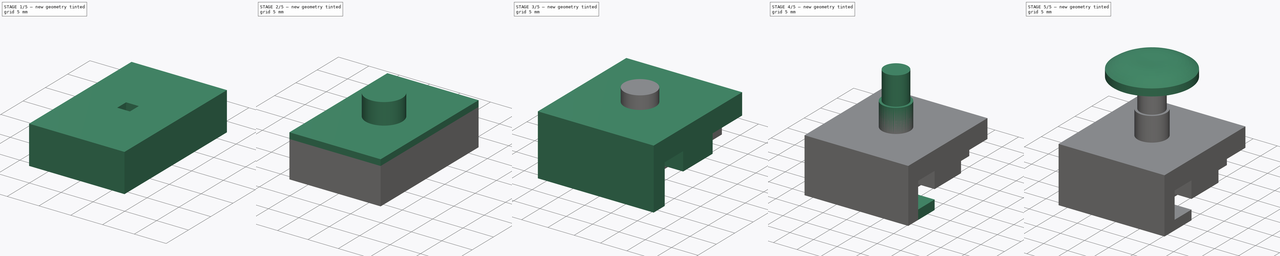
[diagram: build sequence overview — one tinted view per stage of 5, left to right]
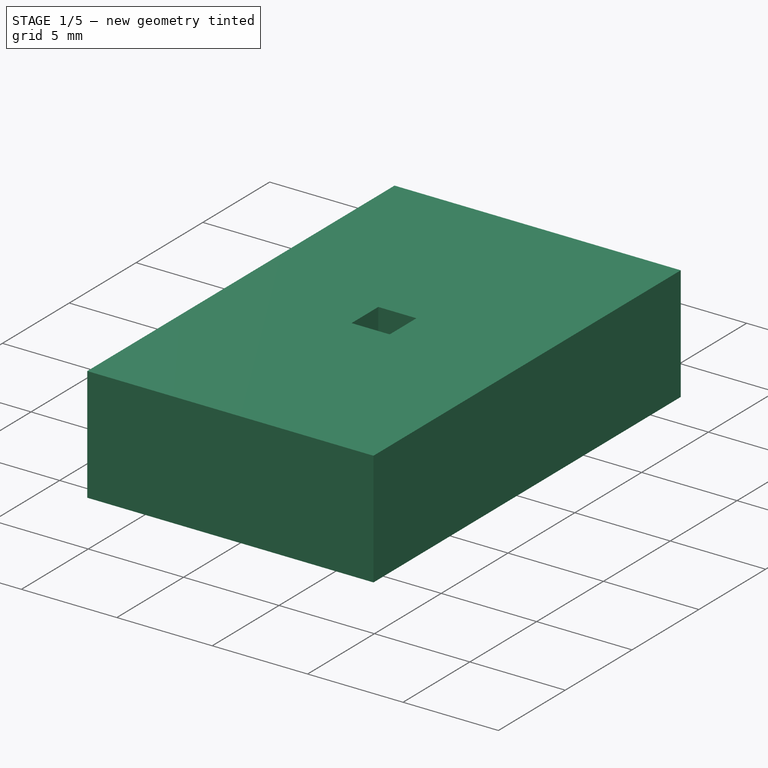
[diagram: stage 1 of 5 — iso view after this stage's code; geometry added in this stage tinted green]
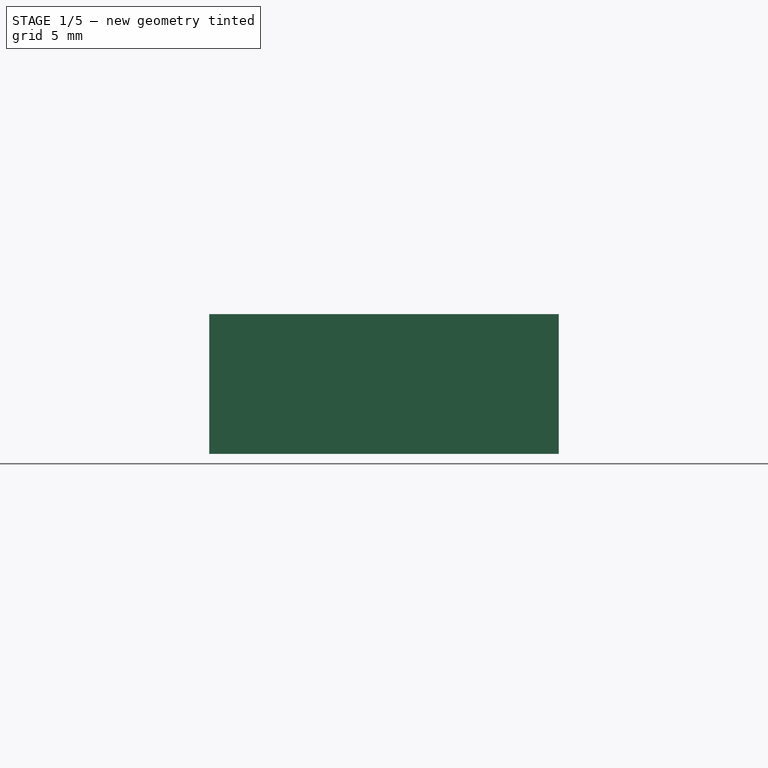
[diagram: stage 1 of 5 — front view after this stage's code; geometry added in this stage tinted green]
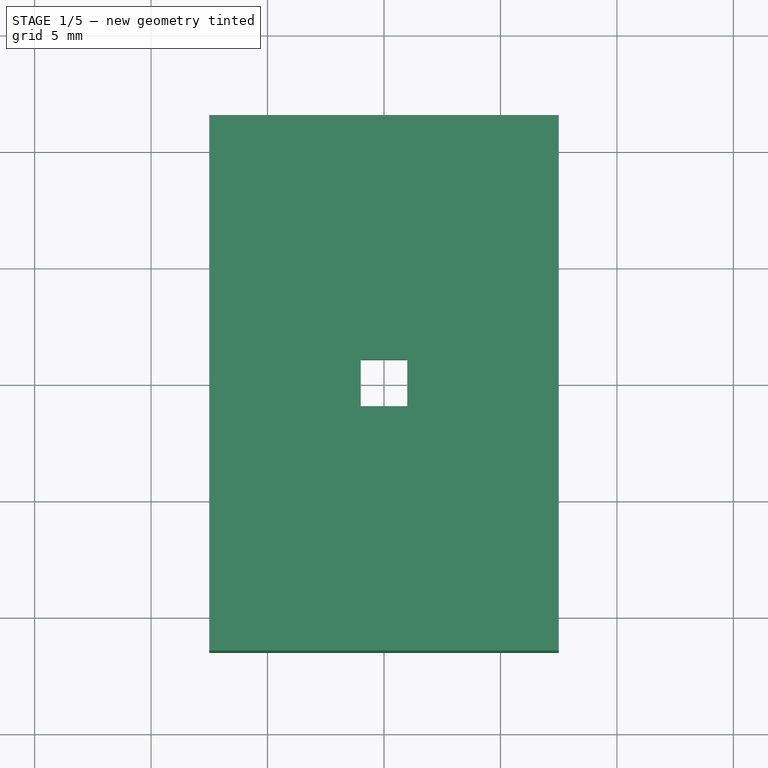
[diagram: stage 1 of 5 — top view after this stage's code; geometry added in this stage tinted green]
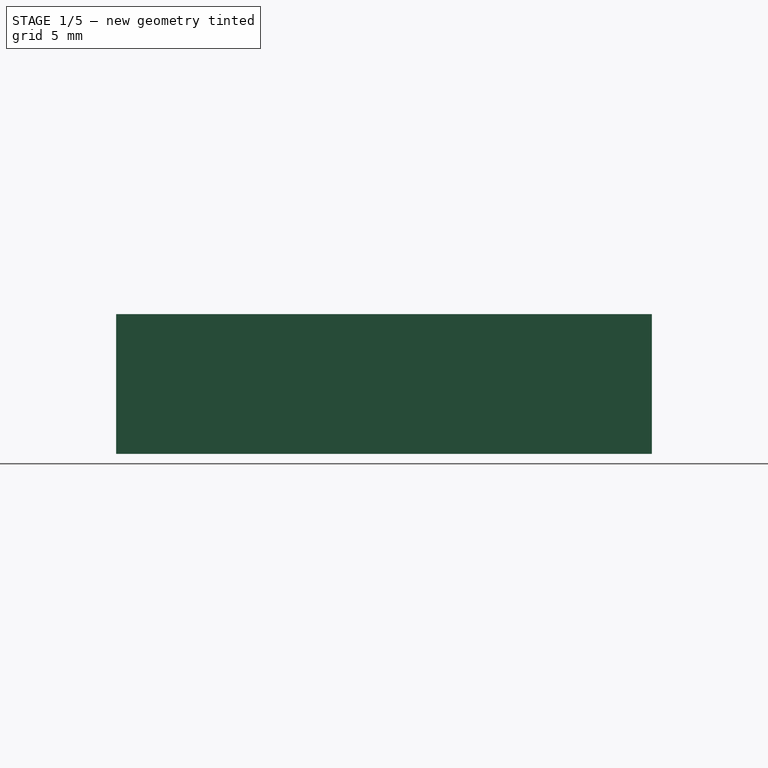
[diagram: stage 1 of 5 — right view after this stage's code; geometry added in this stage tinted green]
FCSTD DOCUMENT  (FreeCAD 0.18R4 (GitTag))
Label: Joystick
License: All rights reserved
LicenseURL: http://en.wikipedia.org/wiki/All_rights_reserved
objects: Sketcher::SketchObject×16, PartDesign::Pad×11, PartDesign::Pocket×4, PartDesign::Body×3, PartDesign::Revolution×1
note: 51 computed .brp shape members not serialized (recipe doc carries the construction recipe); baked Part::Feature solids carry a one-line shape summary decoded from their .brp

FEATURE [PartDesign::Body] Body001  label="BaseTest"
  Group = -> [Sketch004,Pad002,Sketch005,Pocket001,Sketch007,Pad004,Sketch008,Pad005,Sketch009,Pad006,Sketch010,Pad007]
  Origin = -> Origin001
  Tip = -> Pad007
FEATURE [Sketcher::SketchObject] Sketch011
  MapMode = 5
  Support = -> [XY_Plane002]
  sketch-geometry (4):
    g0: LineSegment StartX=-7.5 StartY=11.5 StartZ=0 EndX=7.5 EndY=11.5 EndZ=0
    g1: LineSegment StartX=7.5 StartY=11.5 StartZ=0 EndX=7.5 EndY=-11.5 EndZ=0
    g2: LineSegment StartX=7.5 StartY=-11.5 StartZ=0 EndX=-7.5 EndY=-11.5 EndZ=0
    g3: LineSegment StartX=-7.5 StartY=-11.5 StartZ=0 EndX=-7.5 EndY=11.5 EndZ=0
  constraints (8):
    c: Coincident(g0,g1)
    c: Coincident(g1,g2)
    c: Coincident(g2,g3)
    c: Coincident(g3,g0)
    c: Horizontal(g0)
    c: Horizontal(g2)
    c: Vertical(g1)
    c: Vertical(g3)
FEATURE [PartDesign::Pad] Pad008
  Length = 2
  Length2 = 100
  Profile = -> Sketch011
  Type = 0
FEATURE [Sketcher::SketchObject] Sketch012
  MapMode = 5
  Placement = pos=(0,0,2) rot=(0,0,1;0rad)
  Support = -> [Pad008]
  sketch-geometry (4):
    g0: LineSegment StartX=1 StartY=1 StartZ=0 EndX=-1 EndY=1 EndZ=0
    g1: LineSegment StartX=-1 StartY=1 StartZ=0 EndX=-1 EndY=-1 EndZ=0
    g2: LineSegment StartX=-1 StartY=-1 StartZ=0 EndX=1 EndY=-1 EndZ=0
    g3: LineSegment StartX=1 StartY=-1 StartZ=0 EndX=1 EndY=1 EndZ=0
  constraints (8):
    c: Coincident(g0,g1)
    c: Coincident(g1,g2)
    c: Coincident(g2,g3)
    c: Coincident(g3,g0)
    c: Horizontal(g0)
    c: Horizontal(g2)
    c: Vertical(g1)
    c: Vertical(g3)
FEATURE [PartDesign::Pocket] Pocket002
  BaseFeature = -> Pad008
  Length = 5
  Length2 = 100
  Profile = -> Sketch012
  Type = 0
FEATURE [Sketcher::SketchObject] Sketch013
  MapMode = 5
  Placement = pos=(0,0,0) rot=(1,0,0;3.14159rad)
  Support = -> [Pocket002]
  sketch-geometry (8):
    g0: LineSegment StartX=5.5 StartY=9.5 StartZ=0 EndX=-5.5 EndY=9.5 EndZ=0
    g1: LineSegment StartX=5.5 StartY=-9.5 StartZ=0 EndX=-5.5 EndY=-9.5 EndZ=0
    g2: LineSegment StartX=-5.5 StartY=9.5 StartZ=0 EndX=-5.5 EndY=-9.5 EndZ=0
    g3: LineSegment StartX=5.5 StartY=9.5 StartZ=0 EndX=5.5 EndY=-9.5 EndZ=0
    g4: LineSegment StartX=-7.5 StartY=11.5 StartZ=0 EndX=7.5 EndY=11.5 EndZ=0
    g5: LineSegment StartX=7.5 StartY=11.5 StartZ=0 EndX=7.5 EndY=-11.5 EndZ=0
    g6: LineSegment StartX=7.5 StartY=-11.5 StartZ=0 EndX=-7.5 EndY=-11.5 EndZ=0
    g7: LineSegment StartX=-7.5 StartY=-11.5 StartZ=0 EndX=-7.5 EndY=11.5 EndZ=0
  constraints (16):
    c: Horizontal(g0)
    c: Horizontal(g1)
    c: Vertical(g2)
    c: Vertical(g3)
    c: Coincident(g0,g2)
    c: Coincident(g0,g3)
    c: Coincident(g3,g1)
    c: Coincident(g1,g2)
    c: Coincident(g4,g5)
    c: Coincident(g5,g6)
    c: Coincident(g6,g7)
    c: Coincident(g7,g4)
    c: Horizontal(g4)
    c: Horizontal(g6)
    c: Vertical(g5)
    c: Vertical(g7)
FEATURE [PartDesign::Pad] Pad009
  BaseFeature = -> Pocket002
  Length = 4
  Length2 = 100
  Profile = -> Sketch013
  Type = 0
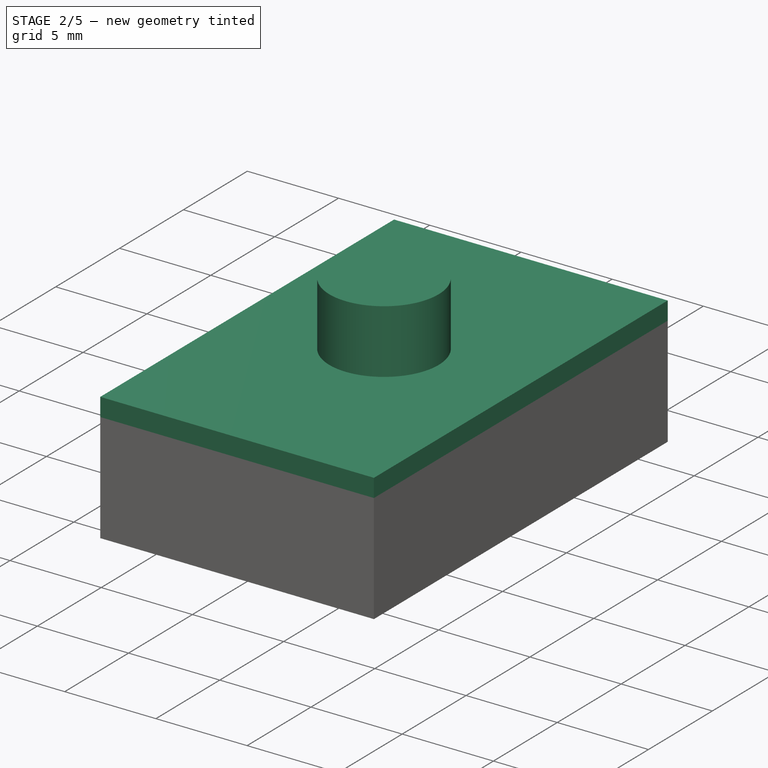
[diagram: stage 2 of 5 — iso view after this stage's code; geometry added in this stage tinted green]
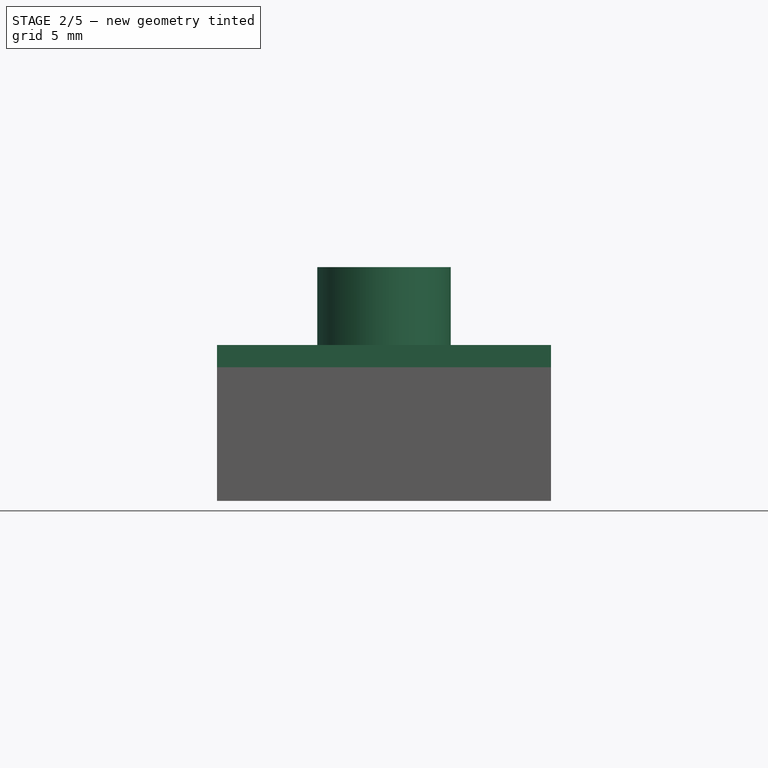
[diagram: stage 2 of 5 — front view after this stage's code; geometry added in this stage tinted green]
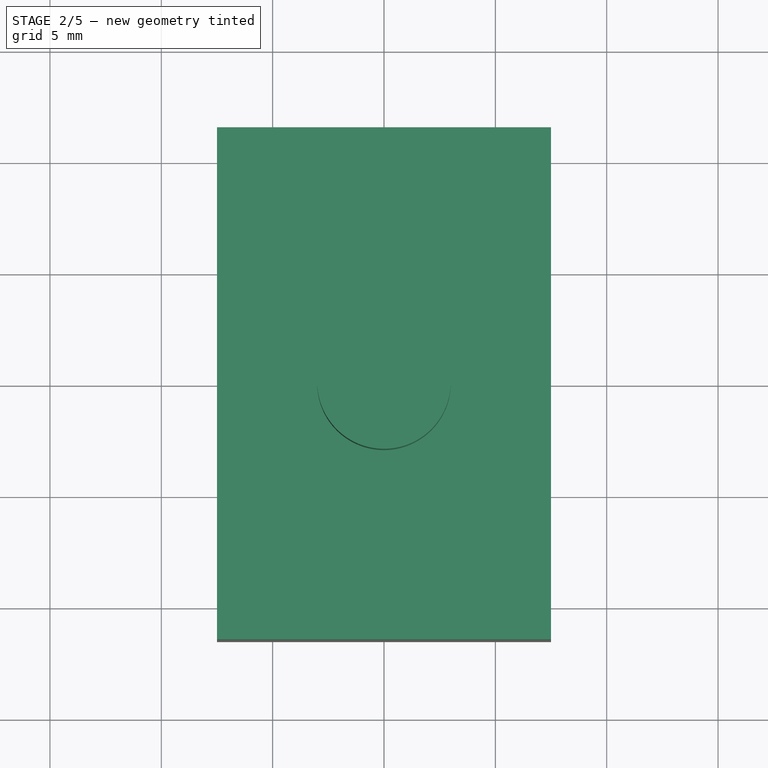
[diagram: stage 2 of 5 — top view after this stage's code; geometry added in this stage tinted green]
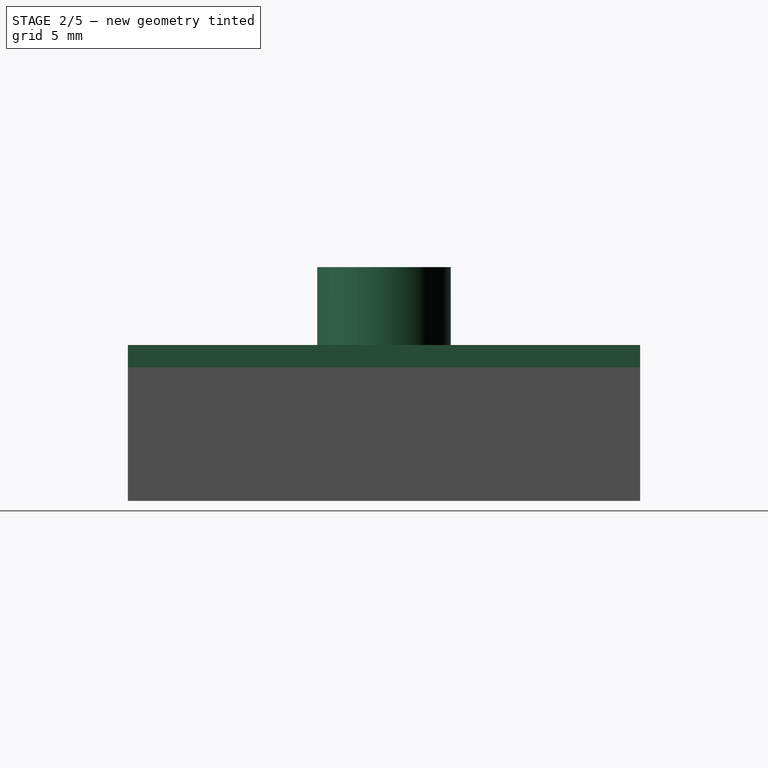
[diagram: stage 2 of 5 — right view after this stage's code; geometry added in this stage tinted green]
FEATURE [Sketcher::SketchObject] Sketch015
  MapMode = 5
  Placement = pos=(0,0,2) rot=(0,0,1;0rad)
  Support = -> [Pad009]
  sketch-geometry (4):
    g0: LineSegment StartX=-7.5 StartY=11.5 StartZ=0 EndX=7.5 EndY=11.5 EndZ=0
    g1: LineSegment StartX=7.5 StartY=11.5 StartZ=0 EndX=7.5 EndY=-11.5 EndZ=0
    g2: LineSegment StartX=7.5 StartY=-11.5 StartZ=0 EndX=-7.5 EndY=-11.5 EndZ=0
    g3: LineSegment StartX=-7.5 StartY=-11.5 StartZ=0 EndX=-7.5 EndY=11.5 EndZ=0
  constraints (8):
    c: Coincident(g0,g1)
    c: Coincident(g1,g2)
    c: Coincident(g2,g3)
    c: Coincident(g3,g0)
    c: Horizontal(g0)
    c: Horizontal(g2)
    c: Vertical(g1)
    c: Vertical(g3)
FEATURE [PartDesign::Pad] Pad010
  BaseFeature = -> Pad009
  Length = 1
  Length2 = 100
  Profile = -> Sketch015
  Type = 0
FEATURE [Sketcher::SketchObject] Sketch016
  MapMode = 5
  Placement = pos=(0,0,3) rot=(0,0,1;0rad)
  Support = -> [Pad010]
  sketch-geometry (1):
    g0: Circle CenterX=0 CenterY=0 CenterZ=0 NormalX=0 NormalY=0 NormalZ=1 AngleXU=0 Radius=3
  constraints (1):
    c: Coincident(g0,g-1)
FEATURE [PartDesign::Pad] Pad011
  BaseFeature = -> Pad010
  Length = 3.5
  Length2 = 100
  Profile = -> Sketch016
  Type = 0
FEATURE [Sketcher::SketchObject] Sketch014
  MapMode = 5
  Placement = pos=(0,0,-4) rot=(1,0,0;3.14159rad)
  Support = -> [Pad011]
  sketch-geometry (4):
    g0: Circle CenterX=-5.25 CenterY=-9 CenterZ=0 NormalX=0 NormalY=0 NormalZ=1 AngleXU=0 Radius=0.5
    g1: Circle CenterX=5.25 CenterY=-9 CenterZ=0 NormalX=0 NormalY=0 NormalZ=1 AngleXU=0 Radius=0.5
    g2: Circle CenterX=-5.25 CenterY=9 CenterZ=0 NormalX=0 NormalY=0 NormalZ=1 AngleXU=0 Radius=0.5
    g3: Circle CenterX=5.25 CenterY=9 CenterZ=0 NormalX=0 NormalY=0 NormalZ=1 AngleXU=0 Radius=0.5
FEATURE [PartDesign::Pocket] Pocket003
  BaseFeature = -> Pad011
  Length = 6.5
  Length2 = 100
  Profile = -> Sketch014
  Type = 0
FEATURE [PartDesign::Body] Body002  label="test"
  Group = -> [Sketch011,Pad008,Sketch012,Pocket002,Sketch013,Pad009,Sketch014,Sketch015,Sketch016,Pad010,Pad011,Pocket003]
  Origin = -> Origin002
  Tip = -> Pocket003
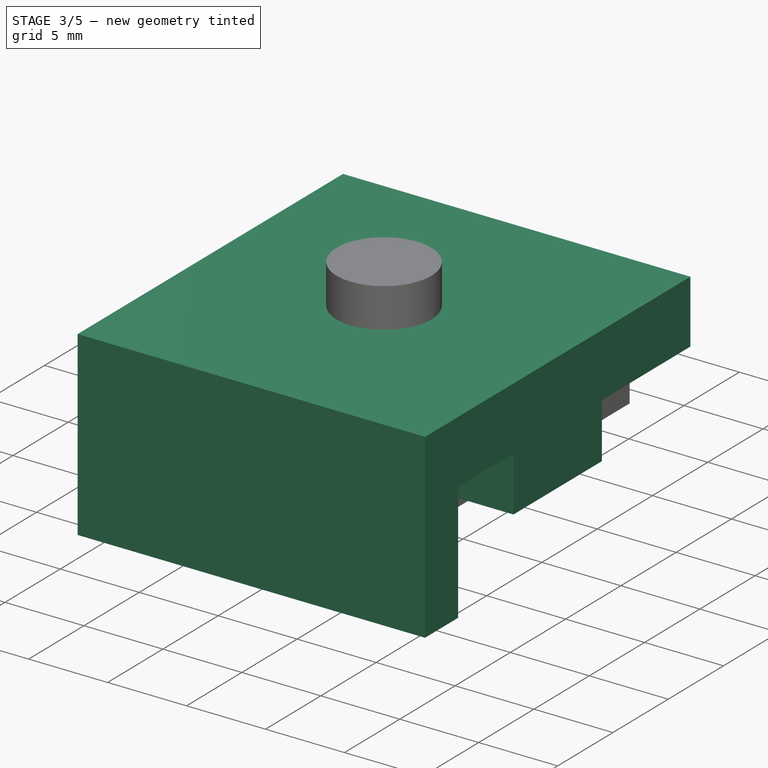
[diagram: stage 3 of 5 — iso view after this stage's code; geometry added in this stage tinted green]
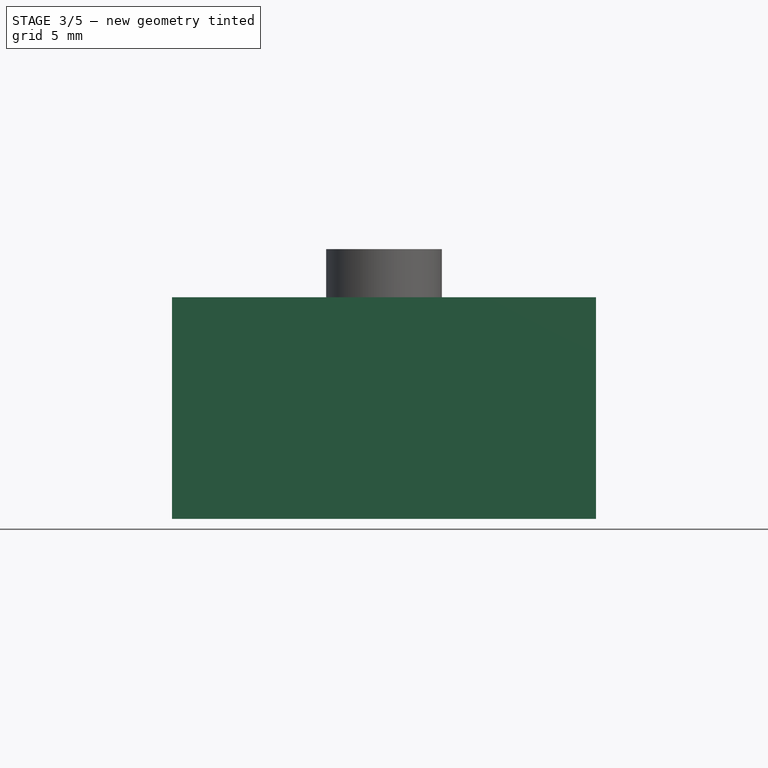
[diagram: stage 3 of 5 — front view after this stage's code; geometry added in this stage tinted green]
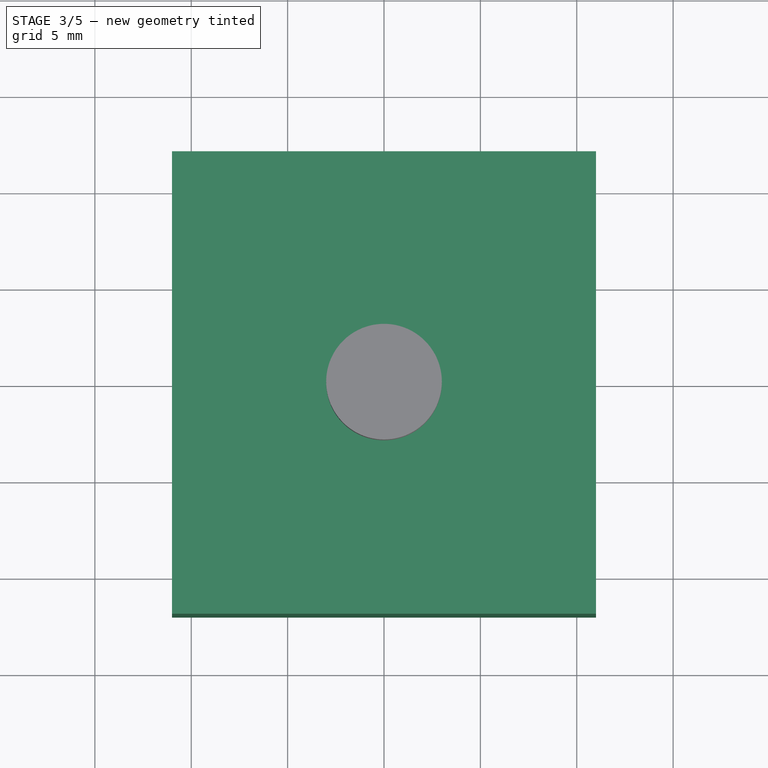
[diagram: stage 3 of 5 — top view after this stage's code; geometry added in this stage tinted green]
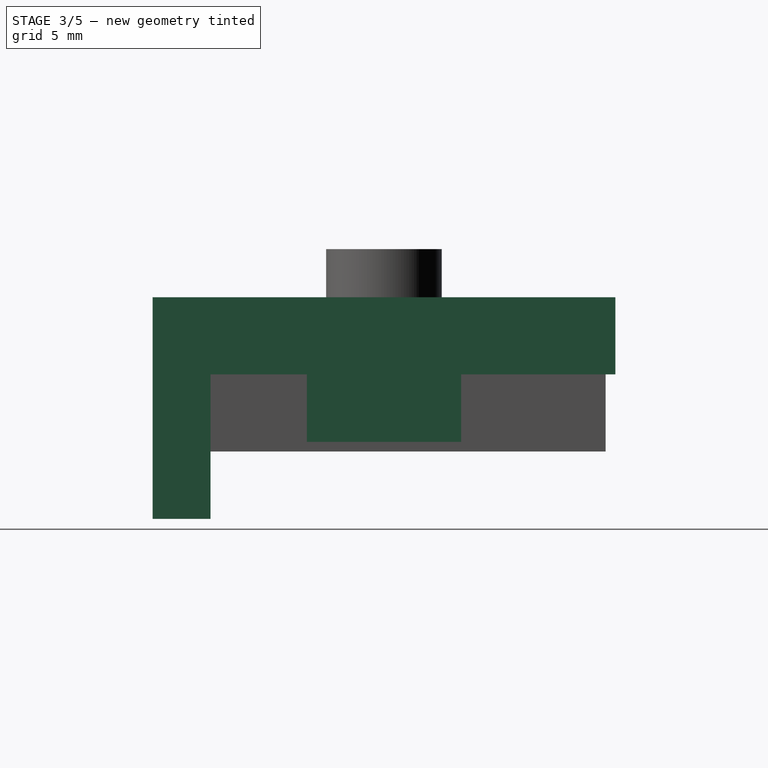
[diagram: stage 3 of 5 — right view after this stage's code; geometry added in this stage tinted green]
FEATURE [PartDesign::Body] Body  label="Paddle"
  Group = -> [Sketch,Pad,Sketch001,Pocket,Sketch002,Pad001,Sketch003,Revolution]
  Origin = -> Origin
  Tip = -> Revolution
FEATURE [Sketcher::SketchObject] Sketch004
  MapMode = 5
  Support = -> [XY_Plane001]
  sketch-geometry (4):
    g0: LineSegment StartX=-11 StartY=12 StartZ=0 EndX=11 EndY=12 EndZ=0
    g1: LineSegment StartX=11 StartY=12 StartZ=0 EndX=11 EndY=-12 EndZ=0
    g2: LineSegment StartX=11 StartY=-12 StartZ=0 EndX=-11 EndY=-12 EndZ=0
    g3: LineSegment StartX=-11 StartY=-12 StartZ=0 EndX=-11 EndY=12 EndZ=0
  constraints (8):
    c: Coincident(g0,g1)
    c: Coincident(g1,g2)
    c: Coincident(g2,g3)
    c: Coincident(g3,g0)
    c: Horizontal(g0)
    c: Horizontal(g2)
    c: Vertical(g1)
    c: Vertical(g3)
FEATURE [PartDesign::Pad] Pad002
  Length = 4
  Length2 = 100
  Profile = -> Sketch004
  Type = 0
FEATURE [Sketcher::SketchObject] Sketch005
  MapMode = 5
  Placement = pos=(0,0,0) rot=(1,0,0;3.14159rad)
  Support = -> [Pad002]
  sketch-geometry (1):
    g0: Circle CenterX=0 CenterY=0 CenterZ=0 NormalX=0 NormalY=0 NormalZ=1 AngleXU=0 Radius=1.42972
  constraints (1):
    c: Coincident(g0,g-1)
FEATURE [PartDesign::Pocket] Pocket001
  BaseFeature = -> Pad002
  Length = 2.75
  Length2 = 100
  Profile = -> Sketch005
  Type = 0
FEATURE [Sketcher::SketchObject] Sketch007
  MapMode = 5
  Placement = pos=(0,0,0) rot=(1,0,0;3.14159rad)
  sketch-geometry (8):
    g0: LineSegment StartX=-6 StartY=4 StartZ=0 EndX=-11 EndY=4 EndZ=0
    g1: LineSegment StartX=-11 StartY=4 StartZ=0 EndX=-11 EndY=-4 EndZ=0
    g2: LineSegment StartX=-11 StartY=-4 StartZ=0 EndX=-6 EndY=-4 EndZ=0
    g3: LineSegment StartX=-6 StartY=-4 StartZ=0 EndX=-6 EndY=4 EndZ=0
    g4: LineSegment StartX=6 StartY=4 StartZ=0 EndX=11 EndY=4 EndZ=0
    g5: LineSegment StartX=11 StartY=4 StartZ=0 EndX=11 EndY=-4 EndZ=0
    g6: LineSegment StartX=11 StartY=-4 StartZ=0 EndX=6 EndY=-4 EndZ=0
    g7: LineSegment StartX=6 StartY=-4 StartZ=0 EndX=6 EndY=4 EndZ=0
  constraints (16):
    c: Coincident(g0,g1)
    c: Coincident(g1,g2)
    c: Coincident(g2,g3)
    c: Coincident(g3,g0)
    c: Horizontal(g0)
    c: Horizontal(g2)
    c: Vertical(g1)
    c: Vertical(g3)
    c: Coincident(g4,g5)
    c: Coincident(g5,g6)
    c: Coincident(g6,g7)
    c: Coincident(g7,g4)
    c: Horizontal(g4)
    c: Horizontal(g6)
    c: Vertical(g5)
    c: Vertical(g7)
FEATURE [PartDesign::Pad] Pad004
  BaseFeature = -> Pocket001
  Length = 3.5
  Length2 = 100
  Profile = -> Sketch007
  Type = 0
FEATURE [Sketcher::SketchObject] Sketch008
  MapMode = 5
  Placement = pos=(0,0,0) rot=(1,0,0;3.14159rad)
  Support = -> [Pad004]
  sketch-geometry (4):
    g0: LineSegment StartX=-11 StartY=12 StartZ=0 EndX=11 EndY=12 EndZ=0
    g1: LineSegment StartX=11 StartY=12 StartZ=0 EndX=11 EndY=9 EndZ=0
    g2: LineSegment StartX=11 StartY=9 StartZ=0 EndX=-11 EndY=9 EndZ=0
    g3: LineSegment StartX=-11 StartY=9 StartZ=0 EndX=-11 EndY=12 EndZ=0
  constraints (8):
    c: Coincident(g0,g1)
    c: Coincident(g1,g2)
    c: Coincident(g2,g3)
    c: Coincident(g3,g0)
    c: Horizontal(g0)
    c: Horizontal(g2)
    c: Vertical(g1)
    c: Vertical(g3)
FEATURE [PartDesign::Pad] Pad005
  BaseFeature = -> Pad004
  Length = 7.5
  Length2 = 100
  Profile = -> Sketch008
  Type = 0
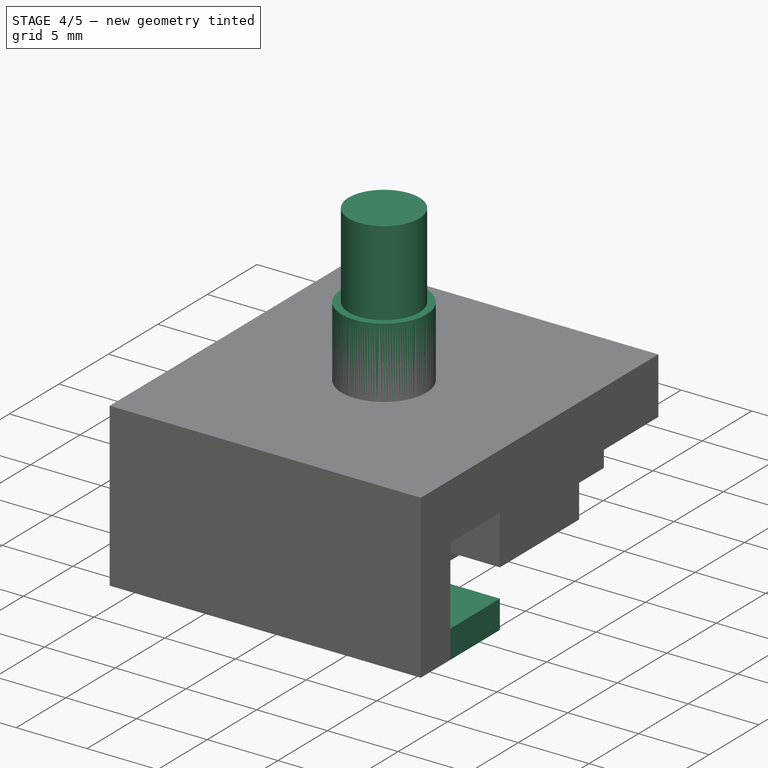
[diagram: stage 4 of 5 — iso view after this stage's code; geometry added in this stage tinted green]
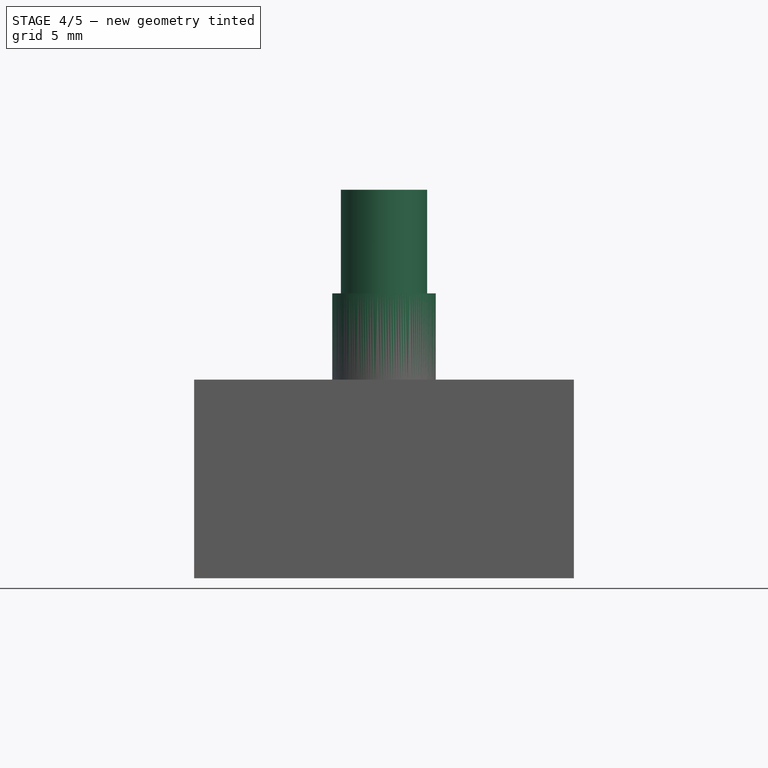
[diagram: stage 4 of 5 — front view after this stage's code; geometry added in this stage tinted green]
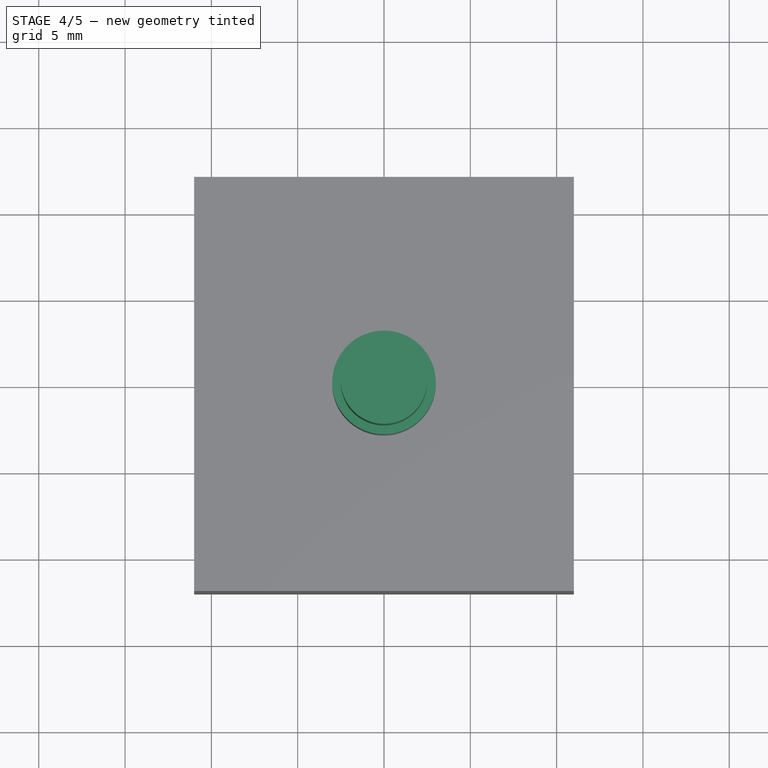
[diagram: stage 4 of 5 — top view after this stage's code; geometry added in this stage tinted green]
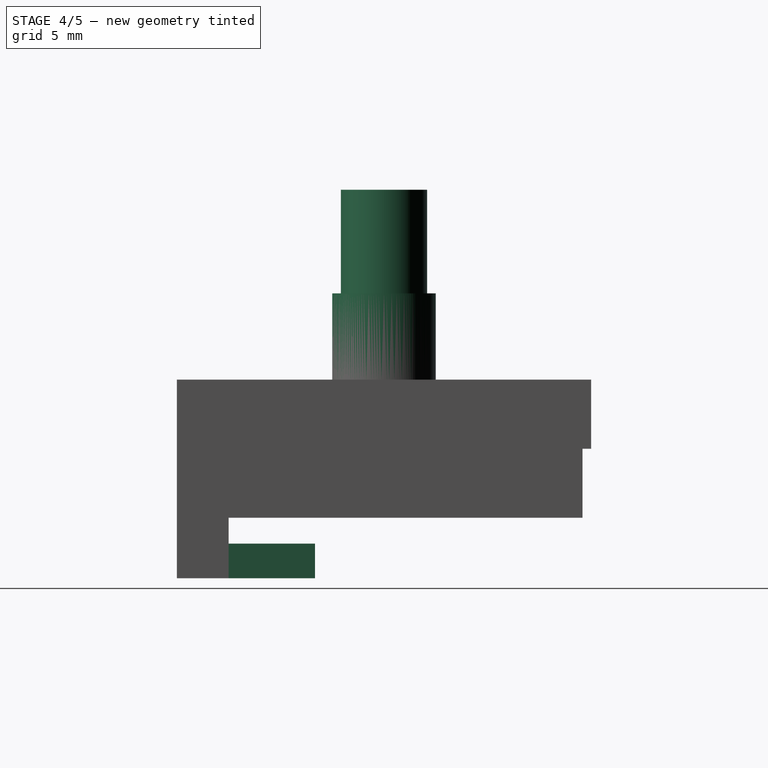
[diagram: stage 4 of 5 — right view after this stage's code; geometry added in this stage tinted green]
FEATURE [Sketcher::SketchObject] Sketch
  MapMode = 5
  Support = -> [XY_Plane]
  sketch-geometry (1):
    g0: Circle CenterX=0 CenterY=0 CenterZ=0 NormalX=0 NormalY=0 NormalZ=1 AngleXU=0 Radius=2.5
  constraints (1):
    c: Coincident(g0,g-1)
FEATURE [PartDesign::Pad] Pad
  Length = 15
  Length2 = 100
  Profile = -> Sketch
  Type = 0
FEATURE [Sketcher::SketchObject] Sketch009
  MapMode = 5
  Placement = pos=(0,-9,0) rot=(0,0.707107,0.707107;3.14159rad)
  Support = -> [Pad005]
  sketch-geometry (4):
    g0: LineSegment StartX=-11 StartY=-7.5 StartZ=0 EndX=11 EndY=-7.5 EndZ=0
    g1: LineSegment StartX=11 StartY=-7.5 StartZ=0 EndX=11 EndY=-5.5 EndZ=0
    g2: LineSegment StartX=11 StartY=-5.5 StartZ=0 EndX=-11 EndY=-5.5 EndZ=0
    g3: LineSegment StartX=-11 StartY=-5.5 StartZ=0 EndX=-11 EndY=-7.5 EndZ=0
  constraints (8):
    c: Coincident(g0,g1)
    c: Coincident(g1,g2)
    c: Coincident(g2,g3)
    c: Coincident(g3,g0)
    c: Horizontal(g0)
    c: Horizontal(g2)
    c: Vertical(g1)
    c: Vertical(g3)
FEATURE [PartDesign::Pad] Pad006
  BaseFeature = -> Pad005
  Length = 5
  Length2 = 100
  Profile = -> Sketch009
  Type = 0
FEATURE [Sketcher::SketchObject] Sketch010
  MapMode = 5
  Placement = pos=(0,0,4) rot=(0,0,1;0rad)
  Support = -> [Pad006]
  sketch-geometry (1):
    g0: Circle CenterX=0 CenterY=0 CenterZ=0 NormalX=0 NormalY=0 NormalZ=1 AngleXU=0 Radius=3
  constraints (1):
    c: Coincident(g0,g-1)
FEATURE [PartDesign::Pad] Pad007
  BaseFeature = -> Pad006
  Length = 5
  Length2 = 100
  Profile = -> Sketch010
  Type = 0
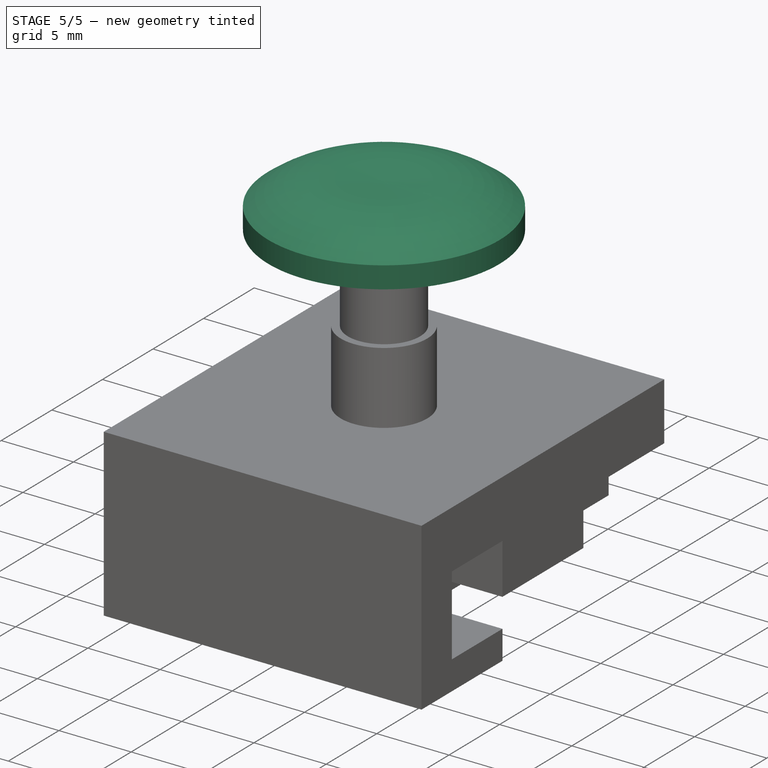
[diagram: stage 5 of 5 — iso view after this stage's code; geometry added in this stage tinted green]
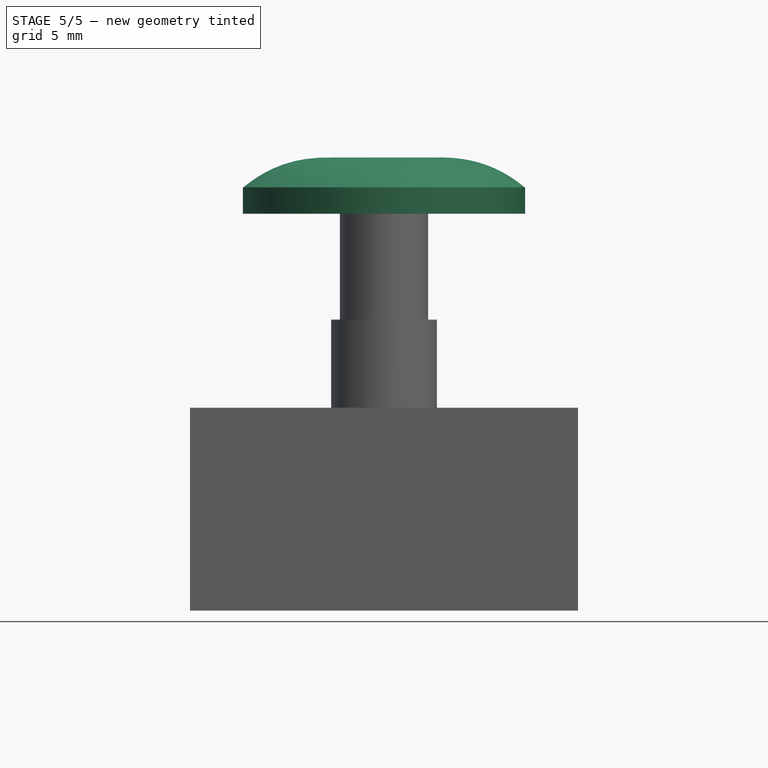
[diagram: stage 5 of 5 — front view after this stage's code; geometry added in this stage tinted green]
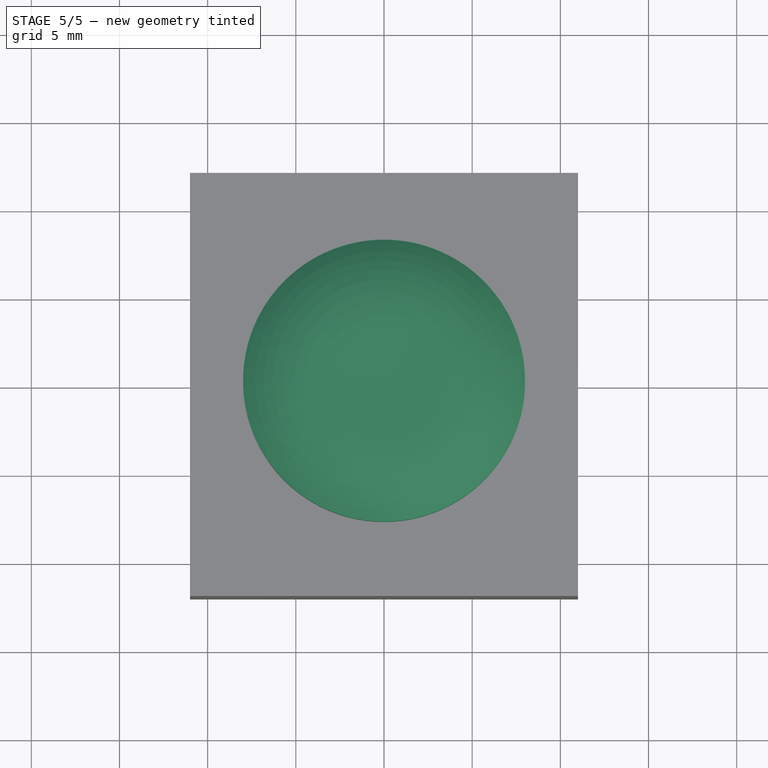
[diagram: stage 5 of 5 — top view after this stage's code; geometry added in this stage tinted green]
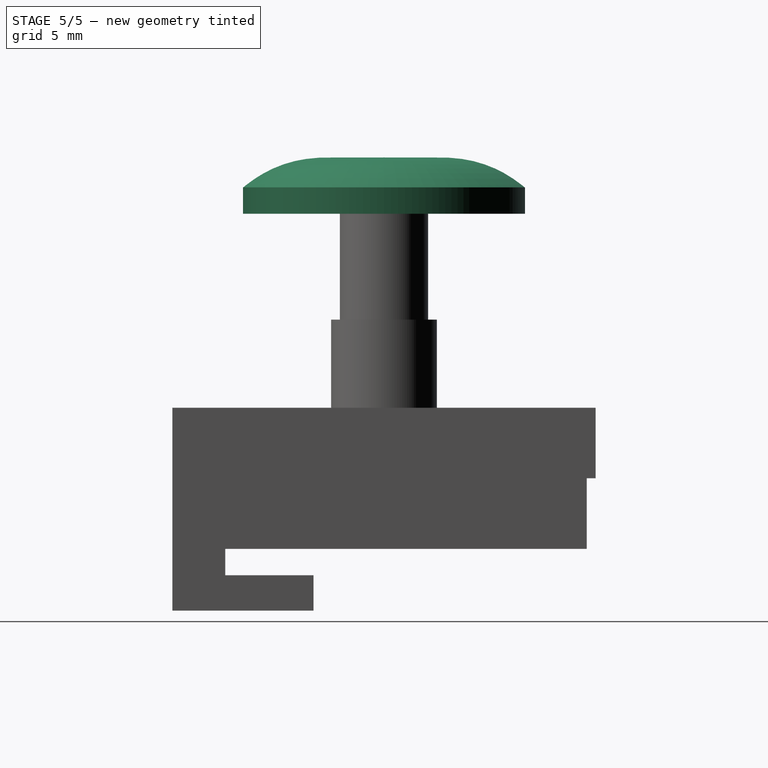
[diagram: stage 5 of 5 — right view after this stage's code; geometry added in this stage tinted green]
FEATURE [Sketcher::SketchObject] Sketch001
  MapMode = 5
  Placement = pos=(0,0,0) rot=(1,0,0;3.14159rad)
  Support = -> [Pad]
  sketch-geometry (4):
    g0: LineSegment StartX=-1.1 StartY=1.1 StartZ=0 EndX=1.1 EndY=1.1 EndZ=0
    g1: LineSegment StartX=1.1 StartY=1.1 StartZ=0 EndX=1.1 EndY=-1.1 EndZ=0
    g2: LineSegment StartX=1.1 StartY=-1.1 StartZ=0 EndX=-1.1 EndY=-1.1 EndZ=0
    g3: LineSegment StartX=-1.1 StartY=-1.1 StartZ=0 EndX=-1.1 EndY=1.1 EndZ=0
  constraints (8):
    c: Coincident(g0,g1)
    c: Coincident(g1,g2)
    c: Coincident(g2,g3)
    c: Coincident(g3,g0)
    c: Horizontal(g0)
    c: Horizontal(g2)
    c: Vertical(g1)
    c: Vertical(g3)
FEATURE [PartDesign::Pocket] Pocket
  BaseFeature = -> Pad
  Length = 2
  Length2 = 100
  Profile = -> Sketch001
  Type = 0
FEATURE [Sketcher::SketchObject] Sketch002
  MapMode = 5
  Placement = pos=(0,0,15) rot=(0,0,1;0rad)
  Support = -> [Pocket]
  sketch-geometry (1):
    g0: Circle CenterX=0 CenterY=0 CenterZ=0 NormalX=0 NormalY=0 NormalZ=1 AngleXU=0 Radius=8
  constraints (1):
    c: Coincident(g0,g-1)
FEATURE [PartDesign::Pad] Pad001
  BaseFeature = -> Pocket
  Length = 1.5
  Length2 = 100
  Profile = -> Sketch002
  Type = 0
FEATURE [Sketcher::SketchObject] Sketch003
  MapMode = 5
  Placement = pos=(0,0,0) rot=(1,0,0;1.5708rad)
  Support = -> [XZ_Plane]
  sketch-geometry (9):
    g0: LineSegment StartX=0 StartY=18 StartZ=0 EndX=0 EndY=16.4802 EndZ=0
    g1: LineSegment StartX=0 StartY=16.4802 StartZ=0 EndX=8 EndY=16.4802 EndZ=0
    g2-g5: Circle [constr] x4 (B-spline internal-alignment scaffolding for g6; pole/knot coordinates omitted)
    g6: BSplineCurve PolesCount=4 KnotsCount=2 Degree=3 IsPeriodic=0
    g7: GeomPoint [constr] X=0 Y=18 Z=0
    g8: GeomPoint [constr] X=8 Y=16.4802 Z=0
  constraints (13):
    c: PointOnObject(g0,g-2)
    c: Vertical(g0)
    c: Coincident(g1,g0)
    c: Horizontal(g1)
    c: Coincident(g6,g0)
    c: Radius(g2) = 0.3
    c: Equal(g2,g3)
    c: Equal(g2,g4)
    c: Equal(g2,g5)
    c: Coincident(g6,g1)
    c: InternalAlignment(g2-g5 -> g6) x4
    c: InternalAlignment(g7,g6)
    c: InternalAlignment(g8,g6)
FEATURE [PartDesign::Revolution] Revolution
  Angle = 360
  Axis = (0,2e-16,1)
  Base = (0,0,0)
  BaseFeature = -> Pad001
  Profile = -> Sketch003
  ReferenceAxis = -> Sketch003 [V_Axis]
  Reversed = true
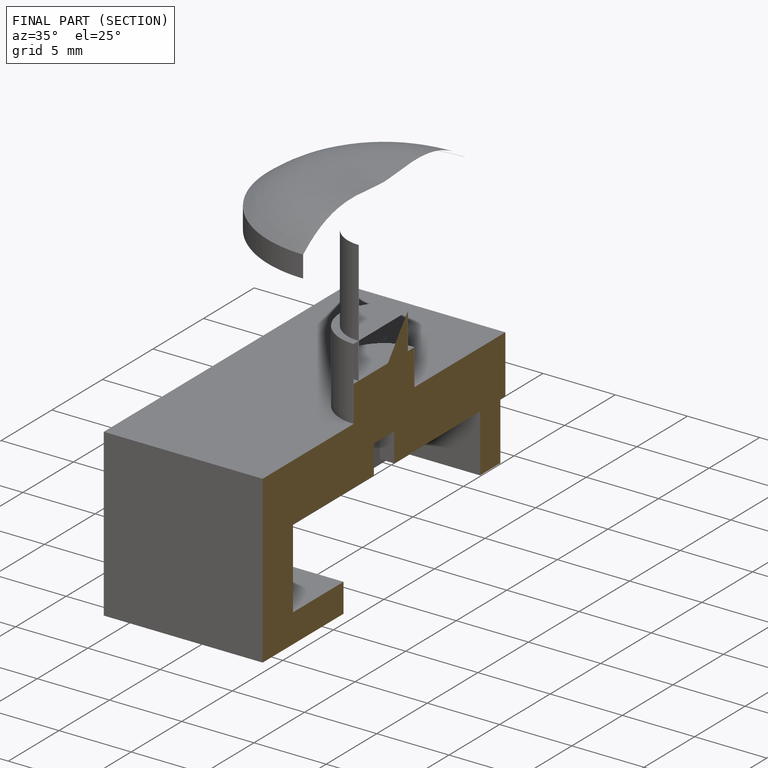
[diagram: finished part — half-section view (interior)]
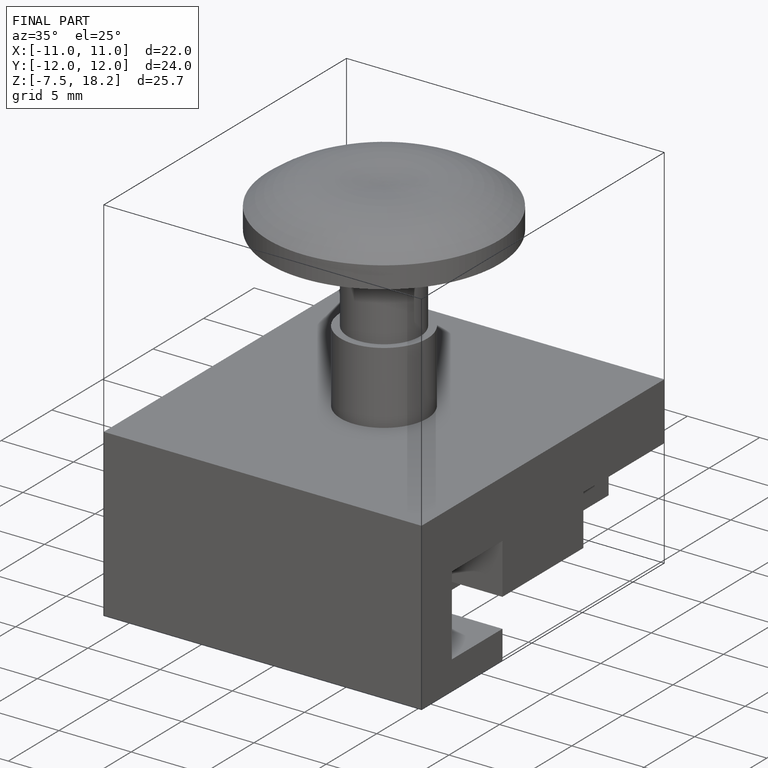
[diagram: finished part — iso view with bounding-box wireframe]
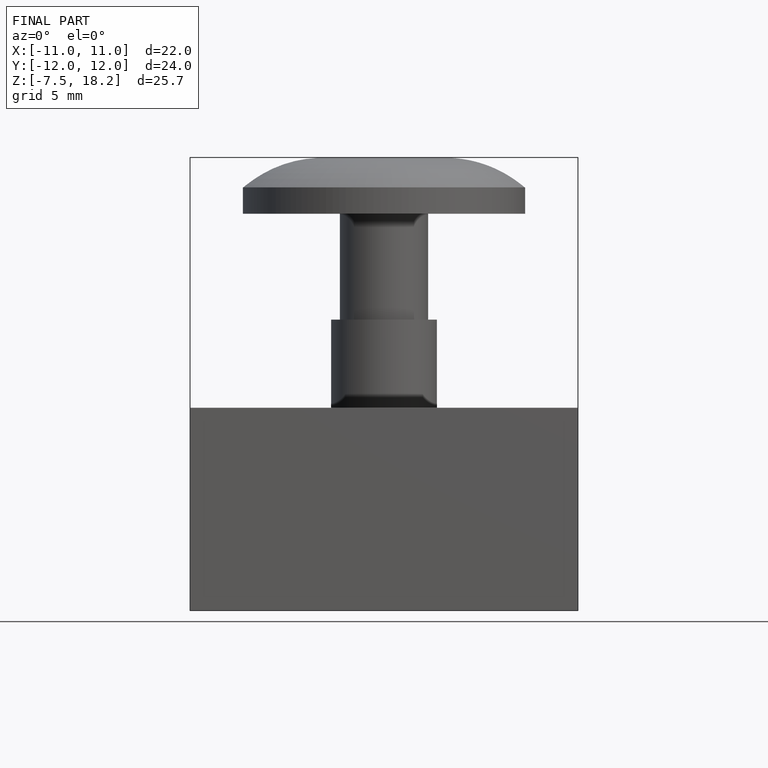
[diagram: finished part — front view with bounding-box wireframe]
